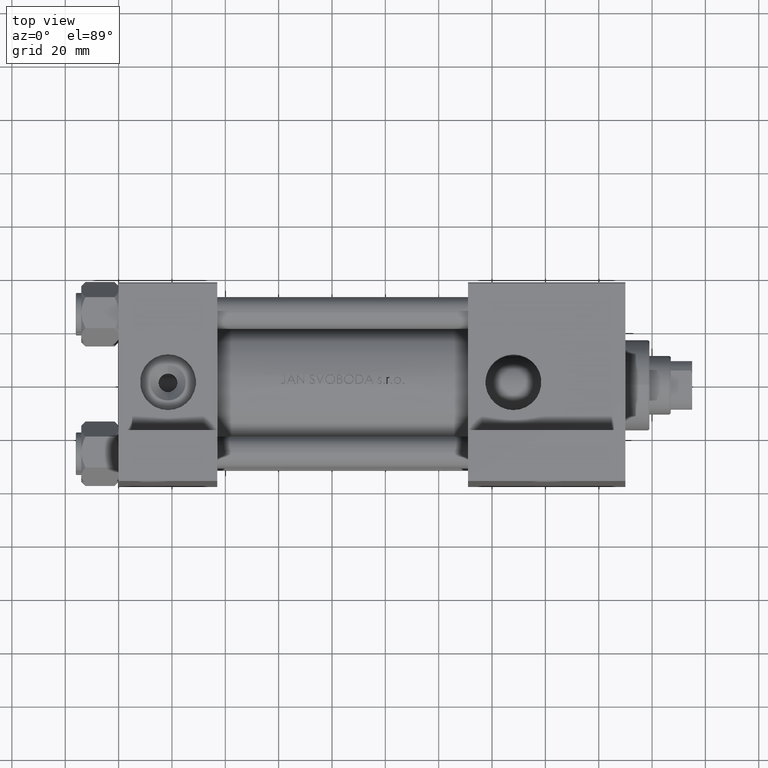
[diagram: clean part render]
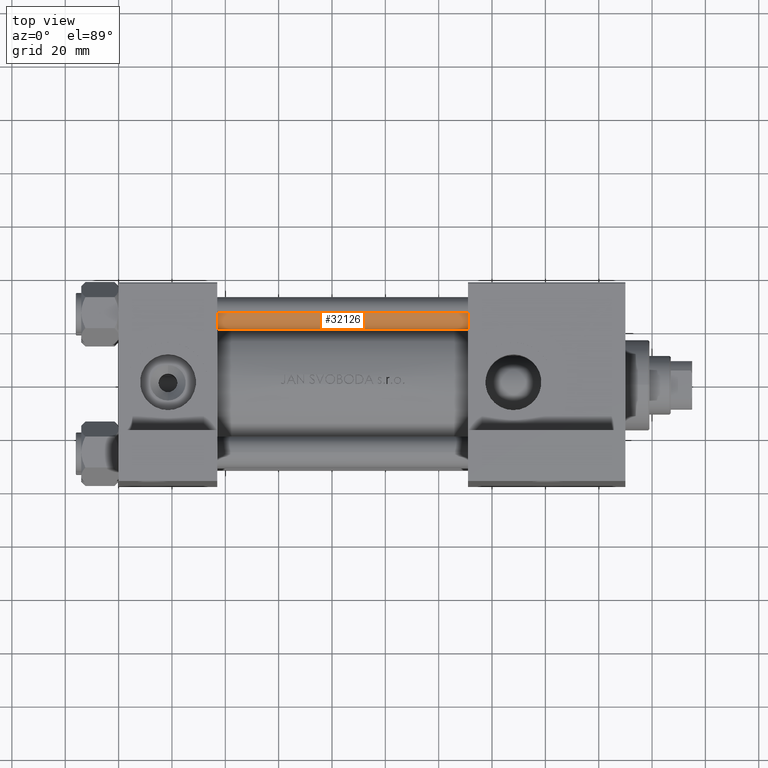
[diagram: same view with one face highlighted and labeled with its STEP entity id]
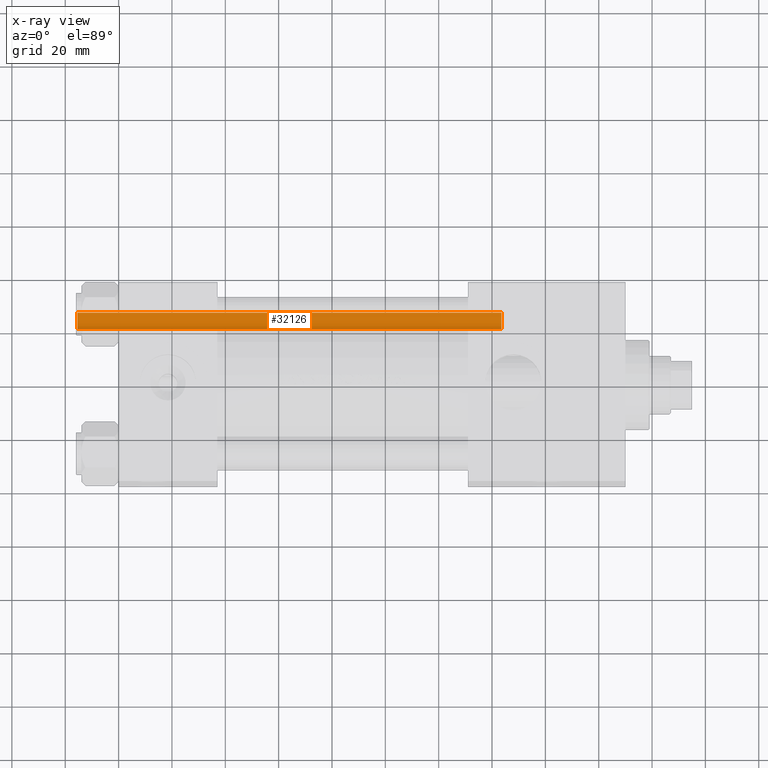
[diagram: x-ray of the same camera — body ghosted, the highlighted face saturated]
A machine part, top view. The second image highlights one B-rep face of the part: STEP entity #32126.
The next image is the same camera in x-ray: the body ghosted, the highlighted face saturated — about 0% of this face is hidden behind the body in this view.
In plain terms, the highlighted cylindrical surface (edge-blend (fillet) strip) has radius 6 mm, axis along (-1, -0, -0).
Its self-contained STEP definition (entity closure, byte-faithful):
#1206 = AXIS2_PLACEMENT_3D ( 'NONE', #47799, #43055, #21401 ) ;
#3077 = VERTEX_POINT ( 'NONE', #26978 ) ;
#5612 = EDGE_CURVE ( 'NONE', #19101, #36126, #36003, .T. ) ;
#11777 = CARTESIAN_POINT ( 'NONE',  ( -6.000000000000000888, 0.000000000000000000, 0.4999999999999726885 ) ) ;
#12760 = VECTOR ( 'NONE', #14751, 1000.000000000000000 ) ;
#13422 = FACE_OUTER_BOUND ( 'NONE', #48328, .T. ) ;
#13832 = CARTESIAN_POINT ( 'NONE',  ( -6.000000000000000888, 0.000000000000000000, 160.0000000000000000 ) ) ;
#14751 = DIRECTION ( 'NONE',  ( -0.000000000000000000, -0.000000000000000000, -1.000000000000000000 ) ) ;
#15239 = CIRCLE ( 'NONE', #17638, 6.000000000000000888 ) ;
#16175 = CARTESIAN_POINT ( 'NONE',  ( 0.000000000000000000, 0.000000000000000000, 159.4999999999999432 ) ) ;
#17638 = AXIS2_PLACEMENT_3D ( 'NONE', #16175, #27895, #27643 ) ;
#17721 = CARTESIAN_POINT ( 'NONE',  ( 6.000000000000000888, 7.347880794884120722E-16, 0.4999999999999726885 ) ) ;
#19086 = EDGE_CURVE ( 'NONE', #19101, #3077, #15239, .T. ) ;
#19101 = VERTEX_POINT ( 'NONE', #36094 ) ;
#20463 = VECTOR ( 'NONE', #41206, 1000.000000000000000 ) ;
#20984 = ORIENTED_EDGE ( 'NONE', *, *, #48105, .T. ) ;
#21401 = DIRECTION ( 'NONE',  ( -1.000000000000000000, 0.000000000000000000, 0.000000000000000000 ) ) ;
#24638 = CYLINDRICAL_SURFACE ( 'NONE', #1206, 6.000000000000000888 ) ;
#25657 = DIRECTION ( 'NONE',  ( 1.000000000000000000, 0.000000000000000000, 0.000000000000000000 ) ) ;
#26978 = CARTESIAN_POINT ( 'NONE',  ( -6.000000000000000888, 0.000000000000000000, 159.4999999999999432 ) ) ;
#27643 = DIRECTION ( 'NONE',  ( 1.000000000000000000, 0.000000000000000000, 0.000000000000000000 ) ) ;
#27895 = DIRECTION ( 'NONE',  ( 0.000000000000000000, 0.000000000000000000, -1.000000000000000000 ) ) ;
#28036 = VERTEX_POINT ( 'NONE', #11777 ) ;
#28513 = EDGE_CURVE ( 'NONE', #28036, #36126, #33825, .T. ) ;
#31889 = CARTESIAN_POINT ( 'NONE',  ( 0.000000000000000000, 0.000000000000000000, 0.4999999999999726885 ) ) ;
#32126 = ADVANCED_FACE ( 'NONE', ( #13422 ), #24638, .T. ) ;
#33825 = CIRCLE ( 'NONE', #46534, 6.000000000000000888 ) ;
#36003 = LINE ( 'NONE', #41918, #20463 ) ;
#36094 = CARTESIAN_POINT ( 'NONE',  ( 6.000000000000000888, 7.347880794884120722E-16, 159.4999999999999432 ) ) ;
#36126 = VERTEX_POINT ( 'NONE', #17721 ) ;
#40236 = LINE ( 'NONE', #13832, #12760 ) ;
#41206 = DIRECTION ( 'NONE',  ( -0.000000000000000000, -0.000000000000000000, -1.000000000000000000 ) ) ;
#41918 = CARTESIAN_POINT ( 'NONE',  ( 6.000000000000000888, 7.347880794884120722E-16, 160.0000000000000000 ) ) ;
#43055 = DIRECTION ( 'NONE',  ( -0.000000000000000000, -0.000000000000000000, -1.000000000000000000 ) ) ;
#46534 = AXIS2_PLACEMENT_3D ( 'NONE', #31889, #47300, #25657 ) ;
#47192 = ORIENTED_EDGE ( 'NONE', *, *, #19086, .T. ) ;
#47235 = ORIENTED_EDGE ( 'NONE', *, *, #28513, .T. ) ;
#47300 = DIRECTION ( 'NONE',  ( -0.000000000000000000, -0.000000000000000000, 1.000000000000000000 ) ) ;
#47441 = ORIENTED_EDGE ( 'NONE', *, *, #5612, .F. ) ;
#47799 = CARTESIAN_POINT ( 'NONE',  ( 0.000000000000000000, 0.000000000000000000, 160.0000000000000000 ) ) ;
#48105 = EDGE_CURVE ( 'NONE', #3077, #28036, #40236, .T. ) ;
#48328 = EDGE_LOOP ( 'NONE', ( #47441, #47192, #20984, #47235 ) ) ;